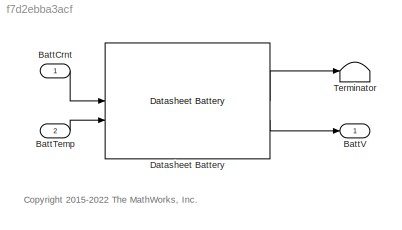
MODEL slx_f7d2ebba3acf
KIND model
CONFIG AbsTol = auto
CONFIG EnableMultiTasking = off
CONFIG FixedStep = auto
CONFIG MaxStep = auto
CONFIG MinStep = auto
CONFIG RelTol = 1e-3
CONFIG SampleTimeConstraint = Unconstrained
CONFIG SolverName = VariableStepAuto
CONFIG StartTime = 0.0
CONFIG StopTime = 10.0
WORKSPACE source: mxarray member
WORKSPACE BattCapInit: Simulink.Parameter (value not decoded)
WORKSPACE BattChargeMax: Simulink.Parameter (value not decoded)
WORKSPACE BattTempBp: Simulink.Parameter (value not decoded)
WORKSPACE CapLUTBp: Simulink.Parameter (value not decoded)
WORKSPACE CapSOCBp: Simulink.Parameter (value not decoded)
WORKSPACE Em: Simulink.Parameter (value not decoded)
WORKSPACE Np: Simulink.Parameter (value not decoded)
WORKSPACE Ns: Simulink.Parameter (value not decoded)
WORKSPACE RInt: Simulink.Parameter (value not decoded)
BLOCK [Inport] BattCrnt
BLOCK [Inport] BattTemp
  Port = 2
BLOCK [Outport] BattV
  VectorParamsAs1DForOutWhenUnconnected = off
BLOCK [Reference] Datasheet Battery  REF=autolibdatasheetbattery/Datasheet Battery
  SourceBlock = autolibdatasheetbattery/Datasheet Battery
  SourceType = Datasheet Battery
BLOCK [Terminator] Terminator
ANNOTATION (root): <copyright redacted>
LINE BattCrnt:1 -> Datasheet Battery:1
LINE BattTemp:1 -> Datasheet Battery:2
LINE Datasheet Battery:1 -> Terminator:1
LINE Datasheet Battery:2 -> BattV:1
